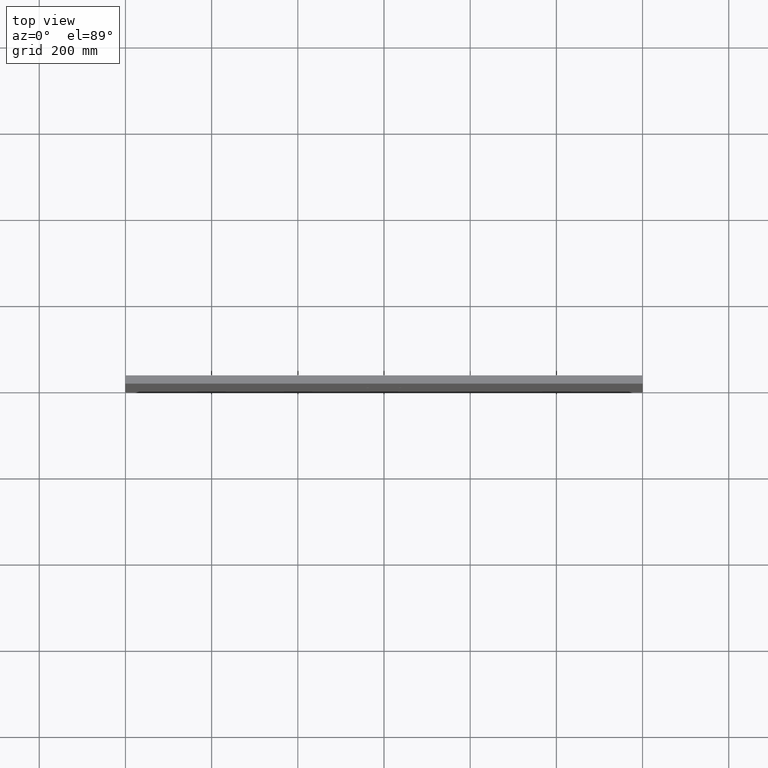
[diagram: clean part render]
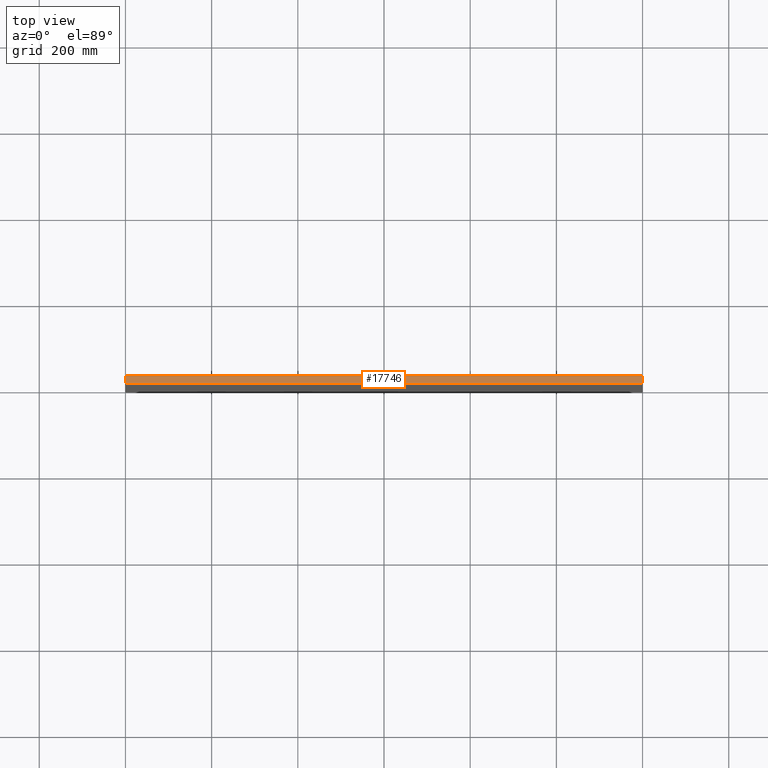
[diagram: same view with one face highlighted and labeled with its STEP entity id]
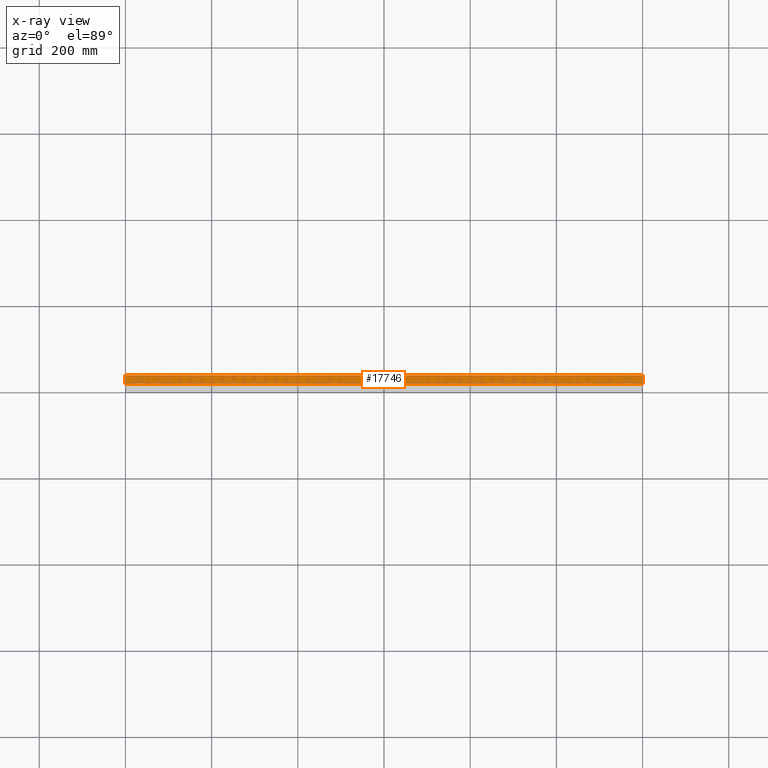
[diagram: x-ray of the same camera — body ghosted, the highlighted face saturated]
A machine part, top view. The second image highlights one B-rep face of the part: STEP entity #17746.
The next image is the same camera in x-ray: the body ghosted, the highlighted face saturated — about 0% of this face is hidden behind the body in this view.
In plain terms, the highlighted planar face has unit normal (0, 0, -1).
Its self-contained STEP definition (entity closure, byte-faithful):
#2424 = VECTOR ( 'NONE', #58356, 1000.000000000000000 ) ;
#2691 = VECTOR ( 'NONE', #75084, 1000.000000000000000 ) ;
#3909 = DIRECTION ( 'NONE',  ( -1.000000000000000000, 0.000000000000000000, -0.000000000000000000 ) ) ;
#8146 = AXIS2_PLACEMENT_3D ( 'NONE', #45679, #67974, #3909 ) ;
#10422 = EDGE_CURVE ( 'NONE', #69427, #59343, #33845, .T. ) ;
#11093 = EDGE_LOOP ( 'NONE', ( #55251, #72609, #21902, #51747 ) ) ;
#11385 = VECTOR ( 'NONE', #62346, 1000.000000000000000 ) ;
#11472 = VERTEX_POINT ( 'NONE', #33190 ) ;
#13427 = CARTESIAN_POINT ( 'NONE',  ( 600.0000000000000000, 19.00000000000000000, 600.0000000000001137 ) ) ;
#17746 = ADVANCED_FACE ( 'NONE', ( #56443 ), #28087, .F. ) ;
#21184 = CARTESIAN_POINT ( 'NONE',  ( 599.9999999999998863, 0.000000000000000000, 600.0000000000001137 ) ) ;
#21347 = CARTESIAN_POINT ( 'NONE',  ( -599.9999999999998863, 19.00000000000000000, 600.0000000000001137 ) ) ;
#21745 = CARTESIAN_POINT ( 'NONE',  ( -599.9999999999998863, 19.00000000000000000, 600.0000000000001137 ) ) ;
#21902 = ORIENTED_EDGE ( 'NONE', *, *, #65884, .F. ) ;
#23689 = LINE ( 'NONE', #52801, #2691 ) ;
#24878 = EDGE_CURVE ( 'NONE', #70573, #59343, #34989, .T. ) ;
#28087 = PLANE ( 'NONE',  #8146 ) ;
#33190 = CARTESIAN_POINT ( 'NONE',  ( -599.9999999999998863, 0.000000000000000000, 600.0000000000001137 ) ) ;
#33602 = LINE ( 'NONE', #21347, #11385 ) ;
#33845 = LINE ( 'NONE', #69112, #60573 ) ;
#34989 = LINE ( 'NONE', #70632, #2424 ) ;
#45679 = CARTESIAN_POINT ( 'NONE',  ( -599.9999999999998863, 19.00000000000000000, 600.0000000000001137 ) ) ;
#51747 = ORIENTED_EDGE ( 'NONE', *, *, #63738, .T. ) ;
#52801 = CARTESIAN_POINT ( 'NONE',  ( -599.9999999999998863, 0.000000000000000000, 600.0000000000001137 ) ) ;
#55251 = ORIENTED_EDGE ( 'NONE', *, *, #24878, .T. ) ;
#56443 = FACE_OUTER_BOUND ( 'NONE', #11093, .T. ) ;
#58356 = DIRECTION ( 'NONE',  ( 0.000000000000000000, 1.000000000000000000, -0.000000000000000000 ) ) ;
#59343 = VERTEX_POINT ( 'NONE', #13427 ) ;
#60573 = VECTOR ( 'NONE', #62977, 1000.000000000000000 ) ;
#62346 = DIRECTION ( 'NONE',  ( 0.000000000000000000, 1.000000000000000000, 0.000000000000000000 ) ) ;
#62977 = DIRECTION ( 'NONE',  ( 1.000000000000000000, 0.000000000000000000, -0.000000000000000000 ) ) ;
#63738 = EDGE_CURVE ( 'NONE', #11472, #70573, #23689, .T. ) ;
#65884 = EDGE_CURVE ( 'NONE', #11472, #69427, #33602, .T. ) ;
#67974 = DIRECTION ( 'NONE',  ( 0.000000000000000000, 0.000000000000000000, -1.000000000000000000 ) ) ;
#69112 = CARTESIAN_POINT ( 'NONE',  ( 0.000000000000000000, 19.00000000000000000, 600.0000000000001137 ) ) ;
#69427 = VERTEX_POINT ( 'NONE', #21745 ) ;
#70573 = VERTEX_POINT ( 'NONE', #21184 ) ;
#70632 = CARTESIAN_POINT ( 'NONE',  ( 600.0000000000000000, 19.00000000000000000, 600.0000000000001137 ) ) ;
#72609 = ORIENTED_EDGE ( 'NONE', *, *, #10422, .F. ) ;
#75084 = DIRECTION ( 'NONE',  ( 1.000000000000000000, -0.000000000000000000, 0.000000000000000000 ) ) ;